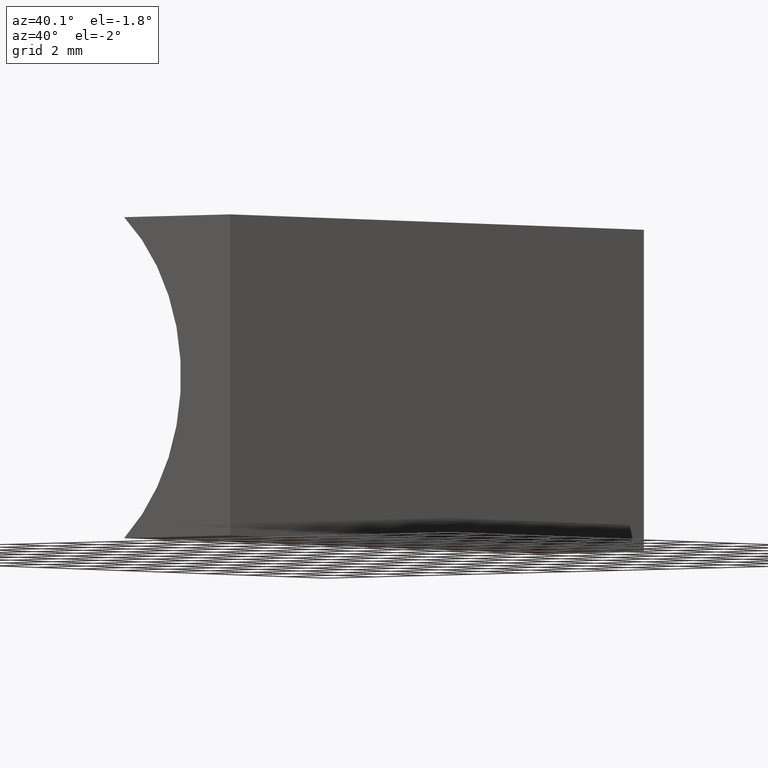
[diagram: clean part render]
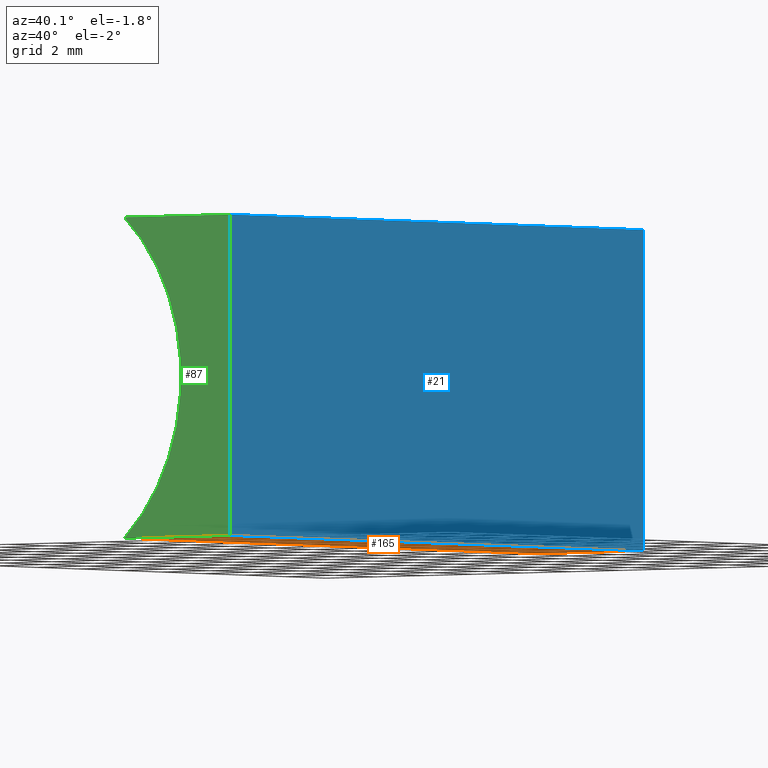
[diagram: same view with three faces highlighted in distinct colors, each labeled with its STEP entity id]
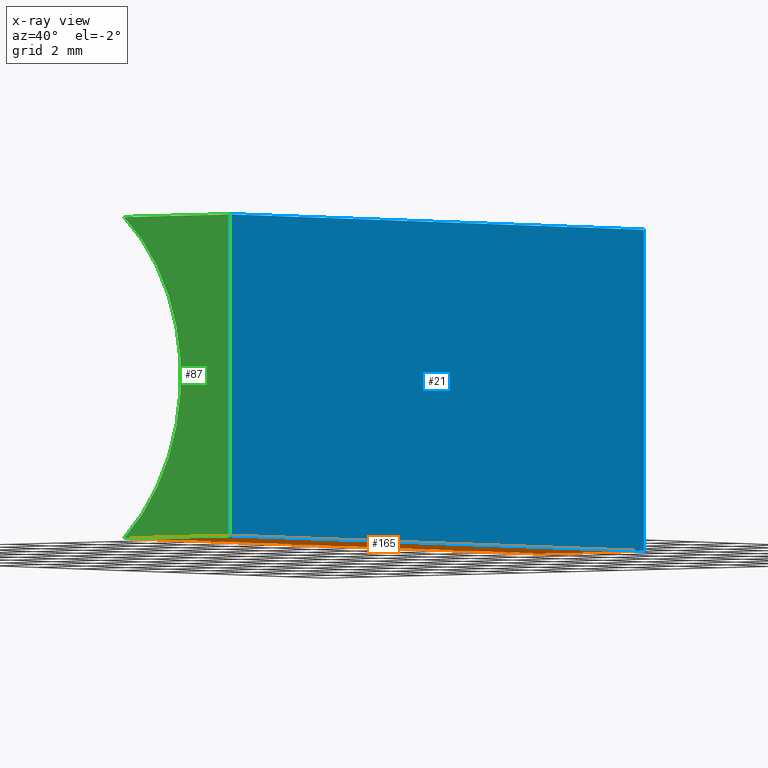
[diagram: x-ray of the same camera — body ghosted, the three highlighted faces saturated]
A machine part, auxiliary view with three faces highlighted in distinct colors.
The next image is the same camera in x-ray (body ghosted, the three faces saturated) — at least one of them is partly hidden behind the body in this view.
Their STEP definitions:

[orange] entity #165 — the highlighted planar face has unit normal (0, -0, 1).
#2 = LINE ( 'NONE', #150, #75 ) ;
#3 = CARTESIAN_POINT ( 'NONE',  ( 0.0000000000000000000, 20.00000000000000000, 0.0000000000000000000 ) ) ;
#4 = DIRECTION ( 'NONE',  ( -0.0000000000000000000, -1.000000000000000000, -0.0000000000000000000 ) ) ;
#6 = ORIENTED_EDGE ( 'NONE', *, *, #8, .T. ) ;
#8 = EDGE_CURVE ( 'NONE', #142, #106, #74, .T. ) ;
#22 = ORIENTED_EDGE ( 'NONE', *, *, #55, .F. ) ;
#23 = CARTESIAN_POINT ( 'NONE',  ( 0.0000000000000000000, 20.00000000000000000, 0.0000000000000000000 ) ) ;
#24 = DIRECTION ( 'NONE',  ( 0.0000000000000000000, -0.0000000000000000000, 1.000000000000000000 ) ) ;
#28 = AXIS2_PLACEMENT_3D ( 'NONE', #23, #24, #56 ) ;
#43 = CARTESIAN_POINT ( 'NONE',  ( 0.0000000000000000000, 0.0000000000000000000, 0.0000000000000000000 ) ) ;
#55 = EDGE_CURVE ( 'NONE', #103, #106, #198, .T. ) ;
#56 = DIRECTION ( 'NONE',  ( 1.000000000000000000, 0.0000000000000000000, -0.0000000000000000000 ) ) ;
#58 = ORIENTED_EDGE ( 'NONE', *, *, #110, .F. ) ;
#61 = CARTESIAN_POINT ( 'NONE',  ( 0.0000000000000000000, 0.0000000000000000000, 0.0000000000000000000 ) ) ;
#68 = VECTOR ( 'NONE', #114, 1000.000000000000000 ) ;
#73 = CARTESIAN_POINT ( 'NONE',  ( -4.313401361089089100, 20.00000000000000000, 8.673617379884035500E-016 ) ) ;
#74 = LINE ( 'NONE', #43, #68 ) ;
#75 = VECTOR ( 'NONE', #138, 1000.000000000000000 ) ;
#78 = CARTESIAN_POINT ( 'NONE',  ( -4.313401361089089100, 20.00000000000000000, 8.673617379884035500E-016 ) ) ;
#103 = VERTEX_POINT ( 'NONE', #78 ) ;
#106 = VERTEX_POINT ( 'NONE', #199 ) ;
#110 = EDGE_CURVE ( 'NONE', #171, #103, #192, .T. ) ;
#111 = PLANE ( 'NONE',  #28 ) ;
#113 = FACE_OUTER_BOUND ( 'NONE', #139, .T. ) ;
#114 = DIRECTION ( 'NONE',  ( -1.000000000000000000, 0.0000000000000000000, 0.0000000000000000000 ) ) ;
#126 = EDGE_CURVE ( 'NONE', #171, #142, #2, .T. ) ;
#135 = ORIENTED_EDGE ( 'NONE', *, *, #126, .T. ) ;
#138 = DIRECTION ( 'NONE',  ( -0.0000000000000000000, -1.000000000000000000, -0.0000000000000000000 ) ) ;
#139 = EDGE_LOOP ( 'NONE', ( #6, #22, #58, #135 ) ) ;
#142 = VERTEX_POINT ( 'NONE', #61 ) ;
#150 = CARTESIAN_POINT ( 'NONE',  ( 0.0000000000000000000, 20.00000000000000000, 0.0000000000000000000 ) ) ;
#157 = VECTOR ( 'NONE', #4, 1000.000000000000000 ) ;
#158 = VECTOR ( 'NONE', #197, 1000.000000000000000 ) ;
#165 = ADVANCED_FACE ( 'NONE', ( #113 ), #111, .F. ) ;
#171 = VERTEX_POINT ( 'NONE', #191 ) ;
#191 = CARTESIAN_POINT ( 'NONE',  ( 0.0000000000000000000, 20.00000000000000000, 0.0000000000000000000 ) ) ;
#192 = LINE ( 'NONE', #3, #158 ) ;
#197 = DIRECTION ( 'NONE',  ( -1.000000000000000000, 0.0000000000000000000, 0.0000000000000000000 ) ) ;
#198 = LINE ( 'NONE', #73, #157 ) ;
#199 = CARTESIAN_POINT ( 'NONE',  ( -4.313401361089089100, 0.0000000000000000000, 8.673617379884035500E-016 ) ) ;

[blue] entity #21 — the highlighted planar face has unit normal (-1, 0, 0).
#2 = LINE ( 'NONE', #150, #75 ) ;
#7 = DIRECTION ( 'NONE',  ( 6.123233995736766000E-017, 0.0000000000000000000, 1.000000000000000000 ) ) ;
#9 = CARTESIAN_POINT ( 'NONE',  ( 6.123233995736766300E-016, 0.0000000000000000000, 10.00000000000000000 ) ) ;
#21 = ADVANCED_FACE ( 'NONE', ( #155 ), #108, .F. ) ;
#30 = LINE ( 'NONE', #178, #69 ) ;
#31 = LINE ( 'NONE', #90, #134 ) ;
#37 = EDGE_CURVE ( 'NONE', #120, #142, #30, .T. ) ;
#47 = LINE ( 'NONE', #63, #72 ) ;
#57 = DIRECTION ( 'NONE',  ( -0.0000000000000000000, -1.000000000000000000, -0.0000000000000000000 ) ) ;
#61 = CARTESIAN_POINT ( 'NONE',  ( 0.0000000000000000000, 0.0000000000000000000, 0.0000000000000000000 ) ) ;
#62 = CARTESIAN_POINT ( 'NONE',  ( 6.123233995736766300E-016, 20.00000000000000000, 10.00000000000000000 ) ) ;
#63 = CARTESIAN_POINT ( 'NONE',  ( 0.0000000000000000000, 20.00000000000000000, 0.0000000000000000000 ) ) ;
#69 = VECTOR ( 'NONE', #97, 1000.000000000000000 ) ;
#72 = VECTOR ( 'NONE', #77, 1000.000000000000000 ) ;
#75 = VECTOR ( 'NONE', #138, 1000.000000000000000 ) ;
#77 = DIRECTION ( 'NONE',  ( -6.123233995736766000E-017, -0.0000000000000000000, -1.000000000000000000 ) ) ;
#85 = ORIENTED_EDGE ( 'NONE', *, *, #188, .T. ) ;
#90 = CARTESIAN_POINT ( 'NONE',  ( 6.123233995736766300E-016, 20.00000000000000000, 10.00000000000000000 ) ) ;
#95 = CARTESIAN_POINT ( 'NONE',  ( 0.0000000000000000000, 20.00000000000000000, 0.0000000000000000000 ) ) ;
#97 = DIRECTION ( 'NONE',  ( -6.123233995736766000E-017, -0.0000000000000000000, -1.000000000000000000 ) ) ;
#102 = EDGE_LOOP ( 'NONE', ( #151, #147, #149, #85 ) ) ;
#108 = PLANE ( 'NONE',  #133 ) ;
#109 = DIRECTION ( 'NONE',  ( -1.000000000000000000, 0.0000000000000000000, 6.123233995736766000E-017 ) ) ;
#120 = VERTEX_POINT ( 'NONE', #9 ) ;
#126 = EDGE_CURVE ( 'NONE', #171, #142, #2, .T. ) ;
#133 = AXIS2_PLACEMENT_3D ( 'NONE', #95, #109, #7 ) ;
#134 = VECTOR ( 'NONE', #57, 1000.000000000000000 ) ;
#138 = DIRECTION ( 'NONE',  ( -0.0000000000000000000, -1.000000000000000000, -0.0000000000000000000 ) ) ;
#142 = VERTEX_POINT ( 'NONE', #61 ) ;
#147 = ORIENTED_EDGE ( 'NONE', *, *, #126, .F. ) ;
#149 = ORIENTED_EDGE ( 'NONE', *, *, #202, .F. ) ;
#150 = CARTESIAN_POINT ( 'NONE',  ( 0.0000000000000000000, 20.00000000000000000, 0.0000000000000000000 ) ) ;
#151 = ORIENTED_EDGE ( 'NONE', *, *, #37, .T. ) ;
#155 = FACE_OUTER_BOUND ( 'NONE', #102, .T. ) ;
#171 = VERTEX_POINT ( 'NONE', #191 ) ;
#178 = CARTESIAN_POINT ( 'NONE',  ( 0.0000000000000000000, 0.0000000000000000000, 0.0000000000000000000 ) ) ;
#188 = EDGE_CURVE ( 'NONE', #203, #120, #31, .T. ) ;
#191 = CARTESIAN_POINT ( 'NONE',  ( 0.0000000000000000000, 20.00000000000000000, 0.0000000000000000000 ) ) ;
#202 = EDGE_CURVE ( 'NONE', #203, #171, #47, .T. ) ;
#203 = VERTEX_POINT ( 'NONE', #62 ) ;

[green] entity #87 — the highlighted planar face has unit normal (0, 1, 0).
#8 = EDGE_CURVE ( 'NONE', #142, #106, #74, .T. ) ;
#9 = CARTESIAN_POINT ( 'NONE',  ( 6.123233995736766300E-016, 0.0000000000000000000, 10.00000000000000000 ) ) ;
#11 = DIRECTION ( 'NONE',  ( 1.000000000000000000, -0.0000000000000000000, -0.0000000000000000000 ) ) ;
#14 = EDGE_LOOP ( 'NONE', ( #53, #112, #204, #118 ) ) ;
#16 = DIRECTION ( 'NONE',  ( 0.0000000000000000000, 1.000000000000000000, 0.0000000000000000000 ) ) ;
#30 = LINE ( 'NONE', #178, #69 ) ;
#34 = LINE ( 'NONE', #184, #189 ) ;
#37 = EDGE_CURVE ( 'NONE', #120, #142, #30, .T. ) ;
#38 = VERTEX_POINT ( 'NONE', #125 ) ;
#41 = CARTESIAN_POINT ( 'NONE',  ( -8.560000000000000500, 0.0000000000000000000, 5.000000000000000000 ) ) ;
#43 = CARTESIAN_POINT ( 'NONE',  ( 0.0000000000000000000, 0.0000000000000000000, 0.0000000000000000000 ) ) ;
#50 = AXIS2_PLACEMENT_3D ( 'NONE', #144, #16, #196 ) ;
#53 = ORIENTED_EDGE ( 'NONE', *, *, #8, .F. ) ;
#61 = CARTESIAN_POINT ( 'NONE',  ( 0.0000000000000000000, 0.0000000000000000000, 0.0000000000000000000 ) ) ;
#67 = AXIS2_PLACEMENT_3D ( 'NONE', #41, #132, #168 ) ;
#68 = VECTOR ( 'NONE', #114, 1000.000000000000000 ) ;
#69 = VECTOR ( 'NONE', #97, 1000.000000000000000 ) ;
#74 = LINE ( 'NONE', #43, #68 ) ;
#87 = ADVANCED_FACE ( 'NONE', ( #89 ), #181, .F. ) ;
#89 = FACE_OUTER_BOUND ( 'NONE', #14, .T. ) ;
#97 = DIRECTION ( 'NONE',  ( -6.123233995736766000E-017, -0.0000000000000000000, -1.000000000000000000 ) ) ;
#106 = VERTEX_POINT ( 'NONE', #199 ) ;
#112 = ORIENTED_EDGE ( 'NONE', *, *, #37, .F. ) ;
#114 = DIRECTION ( 'NONE',  ( -1.000000000000000000, 0.0000000000000000000, 0.0000000000000000000 ) ) ;
#115 = EDGE_CURVE ( 'NONE', #106, #38, #167, .T. ) ;
#118 = ORIENTED_EDGE ( 'NONE', *, *, #115, .F. ) ;
#120 = VERTEX_POINT ( 'NONE', #9 ) ;
#125 = CARTESIAN_POINT ( 'NONE',  ( -4.313401361089089100, 0.0000000000000000000, 10.00000000000000000 ) ) ;
#132 = DIRECTION ( 'NONE',  ( -0.0000000000000000000, -1.000000000000000000, -0.0000000000000000000 ) ) ;
#142 = VERTEX_POINT ( 'NONE', #61 ) ;
#144 = CARTESIAN_POINT ( 'NONE',  ( -8.560000000000000500, 0.0000000000000000000, 5.000000000000000000 ) ) ;
#167 = CIRCLE ( 'NONE', #67, 6.560000000000000500 ) ;
#168 = DIRECTION ( 'NONE',  ( 0.0000000000000000000, 0.0000000000000000000, 1.000000000000000000 ) ) ;
#178 = CARTESIAN_POINT ( 'NONE',  ( 0.0000000000000000000, 0.0000000000000000000, 0.0000000000000000000 ) ) ;
#179 = EDGE_CURVE ( 'NONE', #38, #120, #34, .T. ) ;
#181 = PLANE ( 'NONE',  #50 ) ;
#184 = CARTESIAN_POINT ( 'NONE',  ( 6.123233995736766300E-016, 0.0000000000000000000, 10.00000000000000000 ) ) ;
#189 = VECTOR ( 'NONE', #11, 1000.000000000000000 ) ;
#196 = DIRECTION ( 'NONE',  ( 0.0000000000000000000, -0.0000000000000000000, 1.000000000000000000 ) ) ;
#199 = CARTESIAN_POINT ( 'NONE',  ( -4.313401361089089100, 0.0000000000000000000, 8.673617379884035500E-016 ) ) ;
#204 = ORIENTED_EDGE ( 'NONE', *, *, #179, .F. ) ;